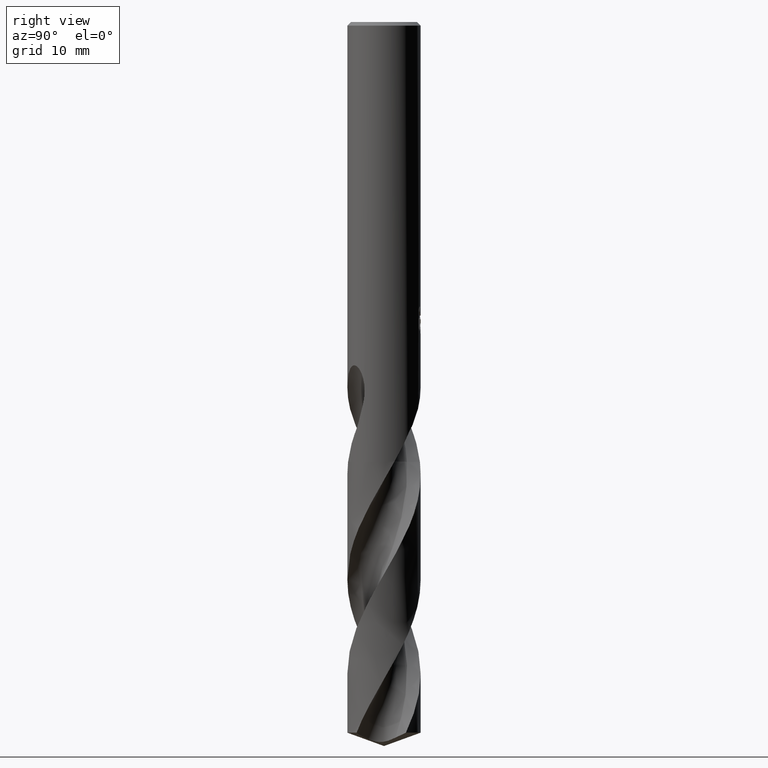
[diagram: clean part render]
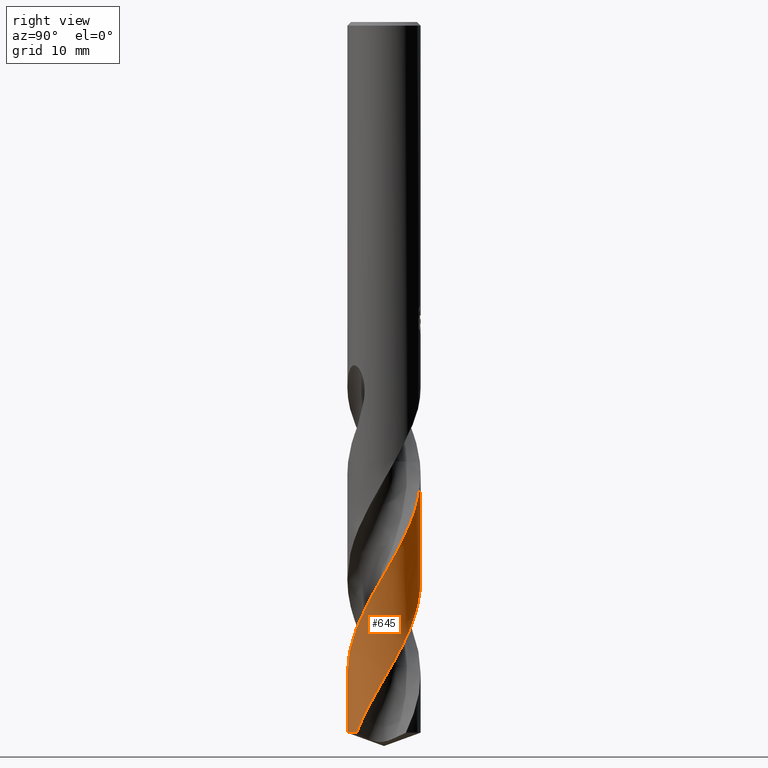
[diagram: same view with one face highlighted and labeled with its STEP entity id]
A machine part, right view. The second image highlights one B-rep face of the part: STEP entity #645.
In plain terms, the highlighted conical surface has half-angle 0 deg.
Its self-contained STEP definition (entity closure, byte-faithful):
#391=VERTEX_POINT('',#893);
#429=VERTEX_POINT('',#933);
#483=EDGE_CURVE('',#585,#429,#998,.T.);
#489=EDGE_CURVE('',#391,#551,#1005,.T.);
#497=VERTEX_POINT('',#1013);
#551=VERTEX_POINT('',#1068);
#567=EDGE_CURVE('',#585,#551,#1084,.T.);
#585=VERTEX_POINT('',#1103);
#633=EDGE_CURVE('',#497,#429,#1154,.T.);
#645=ADVANCED_FACE('',(#1167),#1168,.T.);
#685=EDGE_CURVE('',#391,#497,#1212,.T.);
#893=CARTESIAN_POINT('',(2.65823386777542,-2.98894508216724,-77.5441190629352));
#933=CARTESIAN_POINT('',(4.98956865576698E-013,-3.99997825148961,-71.1187132543337));
#998=B_SPLINE_CURVE_WITH_KNOTS('',3,(#3729,#3730,#3731,#3732,#3733,#3734,#3735,#3736,#3737,#3738,#3739,#3740,#3741,#3742,#3743,#3744,#3745,#3746,#3747,#3748,#3749,#3750,#3751,#3752,#3753,#3754,#3755,#3756,#3757,#3758,#3759,#3760,#3761,#3762,#3763,#3764,#3765,#3766,#3767,#3768,#3769,#3770,#3771,#3772,#3773,#3774,#3775,#3776,#3777,#3778),.UNSPECIFIED.,.F.,.F.,(4,2,2,2,2,2,2,2,2,2,2,2,2,2,2,2,2,2,2,2,2,2,2,2,4),(0.0,1.02799668072743,2.07735387750511,3.63013426701906,5.17800600634503,5.94599776401819,7.48811495478493,9.03166706725674,10.5844226292078,10.6321024625737,12.0985094851628,13.6544079895645,15.1994408432982,15.9700367694683,17.5101261621021,19.0567035443242,20.6081106442215,20.7990912396723,22.3324829514634,23.8079970118476,25.0952914905237,26.2243221054279,28.1968960374362,28.3820861641038,34.2062165402918),.UNSPECIFIED.);
#1005=B_SPLINE_CURVE_WITH_KNOTS('',3,(#3786,#3787,#3788,#3789,#3790,#3791,#3792,#3793,#3794,#3795,#3796,#3797,#3798,#3799,#3800,#3801,#3802,#3803,#3804,#3805,#3806,#3807,#3808,#3809,#3810,#3811,#3812,#3813,#3814,#3815,#3816,#3817,#3818,#3819,#3820,#3821,#3822,#3823,#3824,#3825,#3826,#3827,#3828,#3829,#3830,#3831,#3832,#3833,#3834,#3835,#3836,#3837,#3838,#3839,#3840,#3841,#3842,#3843,#3844,#3845,#3846,#3847,#3848,#3849,#3850,#3851,#3852,#3853),.UNSPECIFIED.,.F.,.F.,(4,2,2,2,2,2,2,2,2,2,2,2,2,2,2,2,2,2,2,2,2,2,2,2,2,2,2,2,2,2,2,2,2,4),(0.0,0.944607777951152,3.20738165784091,3.64605016216994,5.04109177066334,6.93254200106291,8.19569085280336,8.77122407498154,9.97841143391573,10.6092595884527,11.2375063172465,12.8818820820643,14.1404376517296,15.6474019999948,16.4210270530417,17.6649263078373,18.2732221294344,18.862197969928,20.0619139881193,20.6721260881207,21.4457888174847,22.515787372869,23.047010431332,24.006520346266,25.19762600031,25.7582955325948,26.8049941696069,27.7248702969497,28.3452986972415,29.0702166414249,30.3435447122945,32.2513553595285,32.7291510940219,34.1591776465675),.UNSPECIFIED.);
#1013=CARTESIAN_POINT('',(4.89842541528951E-016,-4.0,-77.5441190629352));
#1068=CARTESIAN_POINT('',(-3.17754887314455E-014,3.9999434480813,-60.8363528659135));
#1084=LINE('',#4143,#4144);
#1103=CARTESIAN_POINT('',(1.30027009858749E-012,3.99990468181259,-49.3832002838924));
#1154=LINE('',#5660,#5661);
#1167=FACE_OUTER_BOUND('',#5790,.T.);
#1168=CONICAL_SURFACE('',#5791,3.99995,3.38476837934508E-006);
#1212=CIRCLE('',#6975,4.0);
#3729=CARTESIAN_POINT('',(-0.791838784257172,3.92073863547652,-48.0036182177148));
#3730=CARTESIAN_POINT('',(-0.623572954509753,3.95472290159962,-48.3001841739063));
#3731=CARTESIAN_POINT('',(-0.45347379760611,3.97780335772909,-48.5970459985183));
#3732=CARTESIAN_POINT('',(-0.108190376495856,4.00226200502776,-49.1965065546733));
#3733=CARTESIAN_POINT('',(0.0669438566469325,4.00317526336883,-49.4986144398605));
#3734=CARTESIAN_POINT('',(0.500304799382371,3.97694296300389,-50.2490689059162));
#3735=CARTESIAN_POINT('',(0.756639476187242,3.93621046468539,-50.6957967936098));
#3736=CARTESIAN_POINT('',(1.25679439903018,3.8060905605391,-51.5903377100846));
#3737=CARTESIAN_POINT('',(1.49972547531259,3.71709823424073,-52.03585489961));
#3738=CARTESIAN_POINT('',(1.8479686907216,3.54975430318761,-52.7037723757406));
#3739=CARTESIAN_POINT('',(1.96068160427707,3.4887617789161,-52.9250443367455));
#3740=CARTESIAN_POINT('',(2.29026091750923,3.28940301301082,-53.5914805864205));
#3741=CARTESIAN_POINT('',(2.49699202947583,3.1353756438742,-54.0356106517793));
#3742=CARTESIAN_POINT('',(2.87825773887598,2.78950342194493,-54.9256725992857));
#3743=CARTESIAN_POINT('',(3.0517704616376,2.59852349962407,-55.3698768717441));
#3744=CARTESIAN_POINT('',(3.36051953863626,2.18480023583649,-56.2632035053534));
#3745=CARTESIAN_POINT('',(3.49489687900719,1.96271308721753,-56.7099054999625));
#3746=CARTESIAN_POINT('',(3.61032397461312,1.7219385673666,-57.1715313415513));
#3747=CARTESIAN_POINT('',(3.61374109732805,1.71475574597713,-57.1852839122685));
#3748=CARTESIAN_POINT('',(3.72156524469699,1.4863549761928,-57.6220044794636));
#3749=CARTESIAN_POINT('',(3.80547096364755,1.25605748852747,-58.0446831869871));
#3750=CARTESIAN_POINT('',(3.93396057781863,0.768629499693572,-58.9165873600731));
#3751=CARTESIAN_POINT('',(3.9755205634699,0.511902729983106,-59.3638328191719));
#3752=CARTESIAN_POINT('',(4.0082264024403,-0.00409668501809779,-60.2585324998916));
#3753=CARTESIAN_POINT('',(3.99965252192941,-0.262260161405335,-60.703411318763));
#3754=CARTESIAN_POINT('',(3.94963082606057,-0.645375924808835,-61.3713903329518));
#3755=CARTESIAN_POINT('',(3.92685244868983,-0.771954550001349,-61.5934223945857));
#3756=CARTESIAN_POINT('',(3.84041809482096,-1.14749470184195,-62.2601319041437));
#3757=CARTESIAN_POINT('',(3.75881784440161,-1.39173131006312,-62.7038362125683));
#3758=CARTESIAN_POINT('',(3.54940469724269,-1.86223938762793,-63.5943650904637));
#3759=CARTESIAN_POINT('',(3.42193866277767,-2.08721890321509,-64.0393989949518));
#3760=CARTESIAN_POINT('',(3.12510908248696,-2.51003594732188,-64.9333724416237));
#3761=CARTESIAN_POINT('',(2.95621913386066,-2.70692878882263,-65.3798229079349));
#3762=CARTESIAN_POINT('',(2.7464216823357,-2.90824136826804,-65.8824828041695));
#3763=CARTESIAN_POINT('',(2.72316705580963,-2.93002768849569,-65.9375679765642));
#3764=CARTESIAN_POINT('',(2.51087206207185,-3.12420804235234,-66.4351149561618));
#3765=CARTESIAN_POINT('',(2.30594160522153,-3.27838425644667,-66.8771623104182));
#3766=CARTESIAN_POINT('',(1.87770784798146,-3.54041785037668,-67.7454389819673));
#3767=CARTESIAN_POINT('',(1.65634242020425,-3.64922424169276,-68.169879283388));
#3768=CARTESIAN_POINT('',(1.22584573243062,-3.81355035996353,-68.9672700531269));
#3769=CARTESIAN_POINT('',(1.01935863655288,-3.87386616444129,-69.3383075747942));
#3770=CARTESIAN_POINT('',(0.624438092530848,-3.95542364312526,-70.0355677272653));
#3771=CARTESIAN_POINT('',(0.437506440133155,-3.98043442289172,-70.3606964115896));
#3772=CARTESIAN_POINT('',(-0.0788281019416708,-4.01271371973942,-71.2559125877793));
#3773=CARTESIAN_POINT('',(-0.408618000438484,-3.99265391182934,-71.8231966990988));
#3774=CARTESIAN_POINT('',(-0.762697256385404,-3.92671750329099,-72.4458548599089));
#3775=CARTESIAN_POINT('',(-0.793014941597138,-3.92070732043977,-72.4992861716339));
#3776=CARTESIAN_POINT('',(-1.77443541464562,-3.71430242834729,-74.2336255397147));
#3777=CARTESIAN_POINT('',(-2.6211642062787,-3.17414673379811,-75.8635256962017));
#3778=CARTESIAN_POINT('',(-3.20352415008978,-2.3952939318154,-77.5441190629352));
#3786=CARTESIAN_POINT('',(2.65823386777542,-2.9889450821672,-77.5441190629351));
#3787=CARTESIAN_POINT('',(2.77556101997767,-2.88459833233122,-77.271192798868));
#3788=CARTESIAN_POINT('',(2.88681406977681,-2.77327742055484,-76.9987989687294));
#3789=CARTESIAN_POINT('',(3.24164789803402,-2.37357552209944,-76.0736120869619));
#3790=CARTESIAN_POINT('',(3.45057109578783,-2.05794395294648,-75.4305468597846));
#3791=CARTESIAN_POINT('',(3.64355241935138,-1.65220166943936,-74.6512273296523));
#3792=CARTESIAN_POINT('',(3.67305599728277,-1.58553265094942,-74.5244965423491));
#3793=CARTESIAN_POINT('',(3.78893127325107,-1.30302280880455,-73.9950222844317));
#3794=CARTESIAN_POINT('',(3.85830732272332,-1.08056131966414,-73.5945146092162));
#3795=CARTESIAN_POINT('',(3.97532202567478,-0.544443886543327,-72.646626005262));
#3796=CARTESIAN_POINT('',(4.00589380939093,-0.229055121082945,-72.0998870111149));
#3797=CARTESIAN_POINT('',(3.9944599893095,0.29770125638679,-71.1901162840375));
#3798=CARTESIAN_POINT('',(3.97320754132906,0.507651590475688,-70.8273830522943));
#3799=CARTESIAN_POINT('',(3.91848448895998,0.808995454165734,-70.2966637400979));
#3800=CARTESIAN_POINT('',(3.8979879006616,0.902606190794169,-70.1302364692485));
#3801=CARTESIAN_POINT('',(3.82400720921623,1.19049017228022,-69.6154103782813));
#3802=CARTESIAN_POINT('',(3.75921750700908,1.38157572042036,-69.2682984052242));
#3803=CARTESIAN_POINT('',(3.63888079694828,1.66415758972272,-68.7379680740258));
#3804=CARTESIAN_POINT('',(3.5938023567063,1.75937749327397,-68.5561069914901));
#3805=CARTESIAN_POINT('',(3.49654990341229,1.94547227657173,-68.1925755155497));
#3806=CARTESIAN_POINT('',(3.44446066179634,2.03626803331527,-68.0108051162415));
#3807=CARTESIAN_POINT('',(3.24332175489941,2.35704008574649,-67.3548451369688));
#3808=CARTESIAN_POINT('',(3.07425088191675,2.57370260214633,-66.8839181044532));
#3809=CARTESIAN_POINT('',(2.73870091757752,2.92289035526333,-66.0466681207446));
#3810=CARTESIAN_POINT('',(2.58165763109903,3.06248135682983,-65.6824271203502));
#3811=CARTESIAN_POINT('',(2.21386814147019,3.34090223543675,-64.8848079898655));
#3812=CARTESIAN_POINT('',(1.99968446075131,3.47332206801672,-64.4529193141634));
#3813=CARTESIAN_POINT('',(1.65910442124705,3.64192517999474,-63.795053137637));
#3814=CARTESIAN_POINT('',(1.54098780175123,3.69345350683831,-63.5713274734946));
#3815=CARTESIAN_POINT('',(1.22669085022833,3.81284728771655,-62.9893081249184));
#3816=CARTESIAN_POINT('',(1.02733886322297,3.87134084666557,-62.6320959182349));
#3817=CARTESIAN_POINT('',(0.724811144481471,3.93503999759793,-62.0981407955814));
#3818=CARTESIAN_POINT('',(0.624810797231516,3.95214493463535,-61.9229085813467));
#3819=CARTESIAN_POINT('',(0.427154435785476,3.97828184015333,-61.577485593007));
#3820=CARTESIAN_POINT('',(0.329572233593384,3.98755230713178,-61.407239214322));
#3821=CARTESIAN_POINT('',(0.0320758150276789,4.00480578424133,-60.8910524411076));
#3822=CARTESIAN_POINT('',(-0.168262103191782,4.00141974601708,-60.546314596761));
#3823=CARTESIAN_POINT('',(-0.4692069325397,3.9736322054744,-60.0244756453559));
#3824=CARTESIAN_POINT('',(-0.570182302213243,3.96039866201095,-59.8486831784084));
#3825=CARTESIAN_POINT('',(-0.797578830601354,3.92173515085452,-59.4494405909496));
#3826=CARTESIAN_POINT('',(-0.923446734858672,3.89401647301849,-59.2256673640249));
#3827=CARTESIAN_POINT('',(-1.21988247485097,3.8135489331283,-58.6938179434197));
#3828=CARTESIAN_POINT('',(-1.38878048212765,3.75535387579231,-58.3862096604213));
#3829=CARTESIAN_POINT('',(-1.63512833820661,3.65153255694253,-57.924670258628));
#3830=CARTESIAN_POINT('',(-1.71563864656531,3.61440108408372,-57.7716468003422));
#3831=CARTESIAN_POINT('',(-1.93778675132493,3.50286090936483,-57.3417784047209));
#3832=CARTESIAN_POINT('',(-2.07616680619516,3.42264710773607,-57.0642468013368));
#3833=CARTESIAN_POINT('',(-2.37474218524537,3.22480692264069,-56.444210668724));
#3834=CARTESIAN_POINT('',(-2.53185874481206,3.10299818715515,-56.1022454766728));
#3835=CARTESIAN_POINT('',(-2.74884941017894,2.90722923892022,-55.5975554894475));
#3836=CARTESIAN_POINT('',(-2.81601396160547,2.84221440458206,-55.4361278722978));
#3837=CARTESIAN_POINT('',(-3.00169670134624,2.64944953153057,-54.972747168788));
#3838=CARTESIAN_POINT('',(-3.11437681596022,2.51605336364011,-54.6699346693963));
#3839=CARTESIAN_POINT('',(-3.30920841790409,2.25212155566297,-54.1027637315224));
#3840=CARTESIAN_POINT('',(-3.3931939531555,2.12348164600063,-53.8381295006574));
#3841=CARTESIAN_POINT('',(-3.52113808299913,1.90043680954705,-53.3940313991512));
#3842=CARTESIAN_POINT('',(-3.56910709743869,1.80872754897585,-53.2152925018531));
#3843=CARTESIAN_POINT('',(-3.66520665408261,1.60629094936421,-52.8271142773001));
#3844=CARTESIAN_POINT('',(-3.71202586746358,1.49492544617618,-52.6173335806382));
#3845=CARTESIAN_POINT('',(-3.82711065586881,1.18220971021615,-52.0405211572522));
#3846=CARTESIAN_POINT('',(-3.8845229273648,0.977255347953403,-51.6747393511731));
#3847=CARTESIAN_POINT('',(-3.98662156575652,0.455736998012434,-50.7571714971848));
#3848=CARTESIAN_POINT('',(-4.01024389664163,0.136897029330281,-50.2056757861321));
#3849=CARTESIAN_POINT('',(-3.99216896016861,-0.261144832812388,-49.5175765969292));
#3850=CARTESIAN_POINT('',(-3.98616466246058,-0.340726047740251,-49.3799083393731));
#3851=CARTESIAN_POINT('',(-3.95270587647728,-0.657541357250728,-48.8296502466309));
#3852=CARTESIAN_POINT('',(-3.90661158782198,-0.890914952813709,-48.4152041226252));
#3853=CARTESIAN_POINT('',(-3.8403657871152,-1.11838757196487,-48.0047999463357));
#4143=CARTESIAN_POINT('',(-4.90310466534272E-016,3.99995,-62.7720595314676));
#4144=VECTOR('',#7996,1.0);
#5660=CARTESIAN_POINT('',(4.89362370460092E-016,-3.99995,-62.7720595314676));
#5661=VECTOR('',#8045,1.0);
#5790=EDGE_LOOP('',(#8054,#8055,#8056,#8057,#8058));
#5791=AXIS2_PLACEMENT_3D('',#8059,#8060,#8061);
#6975=AXIS2_PLACEMENT_3D('',#8096,#8097,#8098);
#7996=DIRECTION('',(-4.14500886355514E-022,3.38476837933861E-006,-0.999999999994272));
#8045=DIRECTION('',(-4.14500886355514E-022,3.38476837933861E-006,0.999999999994272));
#8054=ORIENTED_EDGE('',*,*,#567,.F.);
#8055=ORIENTED_EDGE('',*,*,#483,.T.);
#8056=ORIENTED_EDGE('',*,*,#633,.F.);
#8057=ORIENTED_EDGE('',*,*,#685,.F.);
#8058=ORIENTED_EDGE('',*,*,#489,.T.);
#8059=CARTESIAN_POINT('',(0.0,0.0,-62.7720595314676));
#8060=DIRECTION('',(0.0,-0.0,-1.0));
#8061=DIRECTION('',(0.0,1.0,0.0));
#8096=CARTESIAN_POINT('',(0.0,0.0,-77.5441190629352));
#8097=DIRECTION('',(0.0,0.0,-1.0));
#8098=DIRECTION('',(0.0,1.0,0.0));